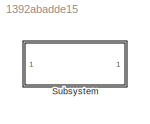
MODEL slx_1392abadde15
KIND model
CONFIG AbsTol = auto
CONFIG EnableMultiTasking = off
CONFIG FixedStep = auto
CONFIG MaxStep = auto
CONFIG MinStep = auto
CONFIG RelTol = 1e-3
CONFIG SampleTimeConstraint = Unconstrained
CONFIG SolverName = VariableStepAuto
CONFIG StartTime = 0.0
CONFIG StopTime = 10.0
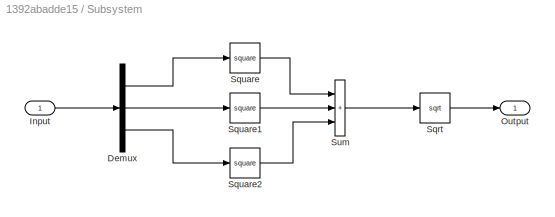
BLOCK [SubSystem] Subsystem
BLOCK [Demux] Subsystem/Demux
  Outputs = 3
BLOCK [Inport] Subsystem/Input
BLOCK [Outport] Subsystem/Output
BLOCK [Sqrt] Subsystem/Sqrt
BLOCK [Math] Subsystem/Square
  Operator = square
BLOCK [Math] Subsystem/Square1
  Operator = square
BLOCK [Math] Subsystem/Square2
  Operator = square
BLOCK [Sum] Subsystem/Sum
  IconShape = rectangular
  Inputs = +++
LINE Subsystem/Demux:1 -> Subsystem/Square:1
LINE Subsystem/Demux:2 -> Subsystem/Square1:1
LINE Subsystem/Demux:3 -> Subsystem/Square2:1
LINE Subsystem/Input:1 -> Subsystem/Demux:1
LINE Subsystem/Sqrt:1 -> Subsystem/Output:1
LINE Subsystem/Square1:1 -> Subsystem/Sum:2
LINE Subsystem/Square2:1 -> Subsystem/Sum:3
LINE Subsystem/Square:1 -> Subsystem/Sum:1
LINE Subsystem/Sum:1 -> Subsystem/Sqrt:1
